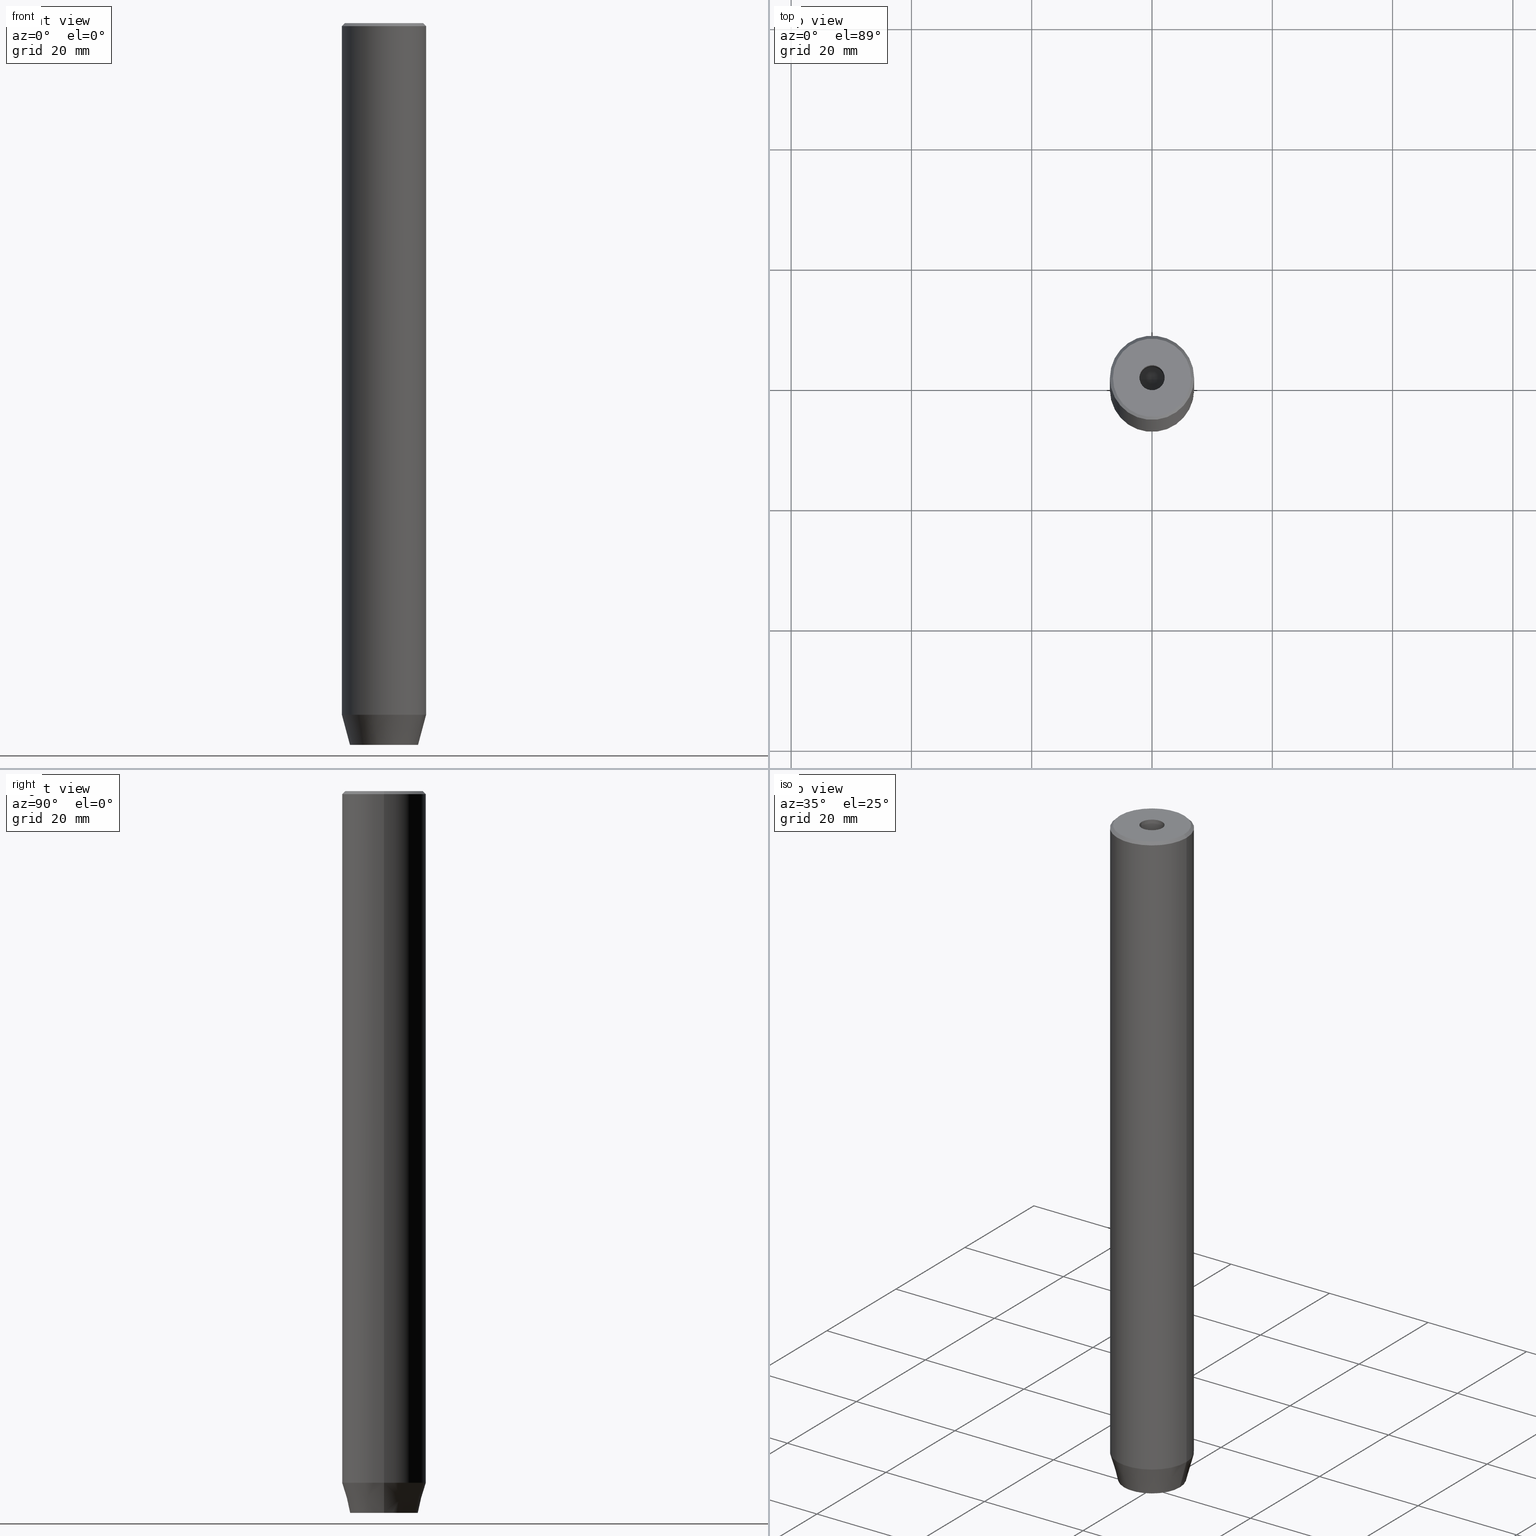
[diagram: canonical four-view strip — front | top / right | iso, engineering-drawing reading convention]
A machine part, canonical four-view strip (front | top / right | iso — engineering-drawing reading convention). The complete STEP part file that produces these views, byte-faithful:
ISO-10303-21;
HEADER;
FILE_DESCRIPTION (( 'STEP AP203' ),
    '1' );
FILE_NAME ('1593.STEP',
    '2024-01-02T21:52:36',
    ( '' ),
    ( '' ),
    'SwSTEP 2.0',
    'SolidWorks 2019',
    '' );
FILE_SCHEMA (( 'CONFIG_CONTROL_DESIGN' ));
ENDSEC;

DATA;
#1 = CYLINDRICAL_SURFACE ( 'NONE', #507, 7.000000000000000000 ) ;
#2 = EDGE_CURVE ( 'NONE', #585, #447, #322, .T. ) ;
#3 = EDGE_LOOP ( 'NONE', ( #538, #160, #533, #373 ) ) ;
#4 = CARTESIAN_POINT ( 'NONE',  ( -2.500000000000000444, 0.000000000000000000, -120.0000000000000000 ) ) ;
#5 = AXIS2_PLACEMENT_3D ( 'NONE', #271, #547, #178 ) ;
#6 = ORIENTED_EDGE ( 'NONE', *, *, #429, .F. ) ;
#7 = DESIGN_CONTEXT ( 'detailed design', #283, 'design' ) ;
#8 = EDGE_CURVE ( 'NONE', #502, #587, #417, .T. ) ;
#9 = DIRECTION ( 'NONE',  ( 0.8660254037844385966, -0.5000000000000001110, 0.000000000000000000 ) ) ;
#10 = ORIENTED_EDGE ( 'NONE', *, *, #568, .T. ) ;
#11 = EDGE_CURVE ( 'NONE', #398, #265, #177, .T. ) ;
#12 = LINE ( 'NONE', #410, #460 ) ;
#13 = VERTEX_POINT ( 'NONE', #144 ) ;
#14 = DIRECTION ( 'NONE',  ( 1.000000000000000000, 0.000000000000000000, 0.000000000000000000 ) ) ;
#15 = PLANE ( 'NONE',  #248 ) ;
#16 = PERSON_AND_ORGANIZATION ( #461, #202 ) ;
#17 = CARTESIAN_POINT ( 'NONE',  ( 5.660254037844382857, 0.000000000000000000, -120.0000000000000000 ) ) ;
#18 = CARTESIAN_POINT ( 'NONE',  ( 0.000000000000000000, 0.000000000000000000, 0.000000000000000000 ) ) ;
#19 = CARTESIAN_POINT ( 'NONE',  ( 2.500000000000000000, -1.443375672974064106, -120.0000000000000000 ) ) ;
#20 = DIRECTION ( 'NONE',  ( 0.000000000000000000, -0.000000000000000000, 1.000000000000000000 ) ) ;
#21 = CARTESIAN_POINT ( 'NONE',  ( 0.000000000000000000, 0.000000000000000000, -0.4999999999999908962 ) ) ;
#22 = VECTOR ( 'NONE', #112, 1000.000000000000000 ) ;
#23 = ADVANCED_FACE ( 'NONE', ( #542, #364 ), #551, .T. ) ;
#24 = LINE ( 'NONE', #200, #22 ) ;
#25 = ORIENTED_EDGE ( 'NONE', *, *, #228, .T. ) ;
#26 = ADVANCED_FACE ( 'NONE', ( #234 ), #545, .F. ) ;
#27 = CALENDAR_DATE ( 2024, 2, 1 ) ;
#28 = DIRECTION ( 'NONE',  ( -0.8660254037844385966, 0.5000000000000001110, 0.000000000000000000 ) ) ;
#29 = ORIENTED_EDGE ( 'NONE', *, *, #481, .F. ) ;
#30 = PERSON_AND_ORGANIZATION ( #461, #202 ) ;
#31 = DIRECTION ( 'NONE',  ( -0.000000000000000000, -0.000000000000000000, -1.000000000000000000 ) ) ;
#32 = ORIENTED_EDGE ( 'NONE', *, *, #491, .F. ) ;
#33 = VECTOR ( 'NONE', #31, 1000.000000000000000 ) ;
#34 = CC_DESIGN_APPROVAL ( #218, ( #53 ) ) ;
#35 = CARTESIAN_POINT ( 'NONE',  ( 6.500000000000005329, 7.960204194457803365E-16, 0.000000000000000000 ) ) ;
#36 = VERTEX_POINT ( 'NONE', #515 ) ;
#37 = CARTESIAN_POINT ( 'NONE',  ( 1.250000000000000222, 2.165063509461096825, -117.2000000000000028 ) ) ;
#38 = VERTEX_POINT ( 'NONE', #381 ) ;
#39 = ADVANCED_FACE ( 'NONE', ( #69 ), #50, .F. ) ;
#40 = DIRECTION ( 'NONE',  ( 0.5000000000000001110, 0.8660254037844385966, -0.000000000000000000 ) ) ;
#41 = EDGE_LOOP ( 'NONE', ( #492, #187 ) ) ;
#42 = DIRECTION ( 'NONE',  ( -0.000000000000000000, -0.000000000000000000, 1.000000000000000000 ) ) ;
#43 = CIRCLE ( 'NONE', #5, 2.099999999999996980 ) ;
#44 = ORIENTED_EDGE ( 'NONE', *, *, #180, .F. ) ;
#45 = DIRECTION ( 'NONE',  ( -0.2588190451025211836, 3.169619151431770488E-17, 0.9659258262890680902 ) ) ;
#46 = EDGE_LOOP ( 'NONE', ( #207, #529, #465, #504, #513, #370 ) ) ;
#47 = CARTESIAN_POINT ( 'NONE',  ( -2.099999999999996980, 2.571758278209438013E-16, -15.00000000000000000 ) ) ;
#48 = ORIENTED_EDGE ( 'NONE', *, *, #382, .F. ) ;
#49 = DIRECTION ( 'NONE',  ( 1.000000000000000000, 0.000000000000000000, 0.000000000000000000 ) ) ;
#50 = CONICAL_SURFACE ( 'NONE', #238, 2.099999999999996980, 1.029744258676652535 ) ;
#51 = VECTOR ( 'NONE', #522, 1000.000000000000000 ) ;
#52 = ORIENTED_EDGE ( 'NONE', *, *, #439, .T. ) ;
#53 = PRODUCT_DEFINITION_FORMATION_WITH_SPECIFIED_SOURCE ( 'LIBOVOLN�', '', #57, .NOT_KNOWN. ) ;
#54 = DIRECTION ( 'NONE',  ( 0.8660254037844385966, 0.4999999999999999445, 0.000000000000000000 ) ) ;
#55 = DIRECTION ( 'NONE',  ( 0.000000000000000000, 0.000000000000000000, -1.000000000000000000 ) ) ;
#56 = PERSON_AND_ORGANIZATION ( #461, #202 ) ;
#57 = PRODUCT ( '1593', '1593', '', ( #561 ) ) ;
#58 = EDGE_LOOP ( 'NONE', ( #411, #80, #494, #579 ) ) ;
#59 = DATE_AND_TIME ( #282, #339 ) ;
#60 = DIRECTION ( 'NONE',  ( 0.000000000000000000, 0.000000000000000000, -1.000000000000000000 ) ) ;
#61 = VECTOR ( 'NONE', #323, 1000.000000000000000 ) ;
#62 = DIRECTION ( 'NONE',  ( -0.4999999999999998890, -0.8660254037844387076, 0.000000000000000000 ) ) ;
#63 = ORIENTED_EDGE ( 'NONE', *, *, #399, .F. ) ;
#64 = CARTESIAN_POINT ( 'NONE',  ( 2.500000000000000000, 1.443375672974064328, -117.2000000000000028 ) ) ;
#65 = EDGE_CURVE ( 'NONE', #217, #587, #562, .T. ) ;
#66 = DIRECTION ( 'NONE',  ( -0.000000000000000000, -0.000000000000000000, -1.000000000000000000 ) ) ;
#67 = VECTOR ( 'NONE', #204, 1000.000000000000000 ) ;
#68 = CIRCLE ( 'NONE', #136, 6.500000000000005329 ) ;
#69 = FACE_OUTER_BOUND ( 'NONE', #74, .T. ) ;
#70 = APPROVAL_STATUS ( 'not_yet_approved' ) ;
#71 = DIRECTION ( 'NONE',  ( -0.000000000000000000, -0.000000000000000000, 1.000000000000000000 ) ) ;
#72 = ORIENTED_EDGE ( 'NONE', *, *, #180, .T. ) ;
#73 = FACE_OUTER_BOUND ( 'NONE', #58, .T. ) ;
#74 = EDGE_LOOP ( 'NONE', ( #86, #97, #184 ) ) ;
#75 = CLOSED_SHELL ( 'NONE', ( #444, #39, #169, #333, #510, #23, #546, #534, #405, #122, #549, #342, #235, #427, #26, #324, #402, #355, #291 ) ) ;
#76 = AXIS2_PLACEMENT_3D ( 'NONE', #188, #463, #501 ) ;
#77 = CC_DESIGN_APPROVAL ( #466, ( #345 ) ) ;
#78 = LINE ( 'NONE', #257, #266 ) ;
#79 = CC_DESIGN_PERSON_AND_ORGANIZATION_ASSIGNMENT ( #341, #293, ( #345 ) ) ;
#80 = ORIENTED_EDGE ( 'NONE', *, *, #130, .F. ) ;
#81 = CALENDAR_DATE ( 2024, 2, 1 ) ;
#82 = CARTESIAN_POINT ( 'NONE',  ( 0.000000000000000000, 0.000000000000000000, 0.000000000000000000 ) ) ;
#83 = EDGE_LOOP ( 'NONE', ( #52, #125, #168, #189 ) ) ;
#84 = EDGE_CURVE ( 'NONE', #398, #299, #432, .T. ) ;
#85 = LINE ( 'NONE', #35, #450 ) ;
#86 = ORIENTED_EDGE ( 'NONE', *, *, #2, .F. ) ;
#87 = AXIS2_PLACEMENT_3D ( 'NONE', #583, #484, #213 ) ;
#88 = DIRECTION ( 'NONE',  ( -0.000000000000000000, -0.000000000000000000, 1.000000000000000000 ) ) ;
#89 = VERTEX_POINT ( 'NONE', #17 ) ;
#90 = DIRECTION ( 'NONE',  ( -0.7071067811865500152, 0.000000000000000000, -0.7071067811865451302 ) ) ;
#91 = ORIENTED_EDGE ( 'NONE', *, *, #367, .F. ) ;
#92 = CARTESIAN_POINT ( 'NONE',  ( -6.500000000000005329, 0.000000000000000000, 0.000000000000000000 ) ) ;
#93 = EDGE_CURVE ( 'NONE', #274, #389, #305, .T. ) ;
#94 = ORIENTED_EDGE ( 'NONE', *, *, #130, .T. ) ;
#95 = DIRECTION ( 'NONE',  ( 0.000000000000000000, 1.000000000000000000, 0.000000000000000000 ) ) ;
#96 = AXIS2_PLACEMENT_3D ( 'NONE', #37, #40, #28 ) ;
#97 = ORIENTED_EDGE ( 'NONE', *, *, #286, .T. ) ;
#98 = AXIS2_PLACEMENT_3D ( 'NONE', #243, #280, #425 ) ;
#99 = APPLICATION_PROTOCOL_DEFINITION ( 'international standard', 'config_control_design', 1994, #283 ) ;
#100 = CARTESIAN_POINT ( 'NONE',  ( -2.500000000000000444, -1.443375672974064328, -117.2000000000000028 ) ) ;
#101 = APPROVAL_ROLE ( '' ) ;
#102 = LINE ( 'NONE', #195, #67 ) ;
#103 = ORIENTED_EDGE ( 'NONE', *, *, #8, .F. ) ;
#104 = EDGE_CURVE ( 'NONE', #350, #242, #113, .T. ) ;
#105 = DIRECTION ( 'NONE',  ( 0.000000000000000000, 0.000000000000000000, 1.000000000000000000 ) ) ;
#106 = DIRECTION ( 'NONE',  ( 0.000000000000000000, 0.000000000000000000, -1.000000000000000000 ) ) ;
#107 = AXIS2_PLACEMENT_3D ( 'NONE', #464, #55, #497 ) ;
#108 = CONICAL_SURFACE ( 'NONE', #574, 7.000000000000000000, 0.2617993877991499074 ) ;
#109 = DIRECTION ( 'NONE',  ( -0.000000000000000000, -0.000000000000000000, 1.000000000000000000 ) ) ;
#110 = EDGE_CURVE ( 'NONE', #265, #354, #24, .T. ) ;
#111 = DIRECTION ( 'NONE',  ( 0.000000000000000000, 0.000000000000000000, -1.000000000000000000 ) ) ;
#112 = DIRECTION ( 'NONE',  ( -0.000000000000000000, -0.000000000000000000, -1.000000000000000000 ) ) ;
#113 = LINE ( 'NONE', #246, #392 ) ;
#114 = AXIS2_PLACEMENT_3D ( 'NONE', #82, #254, #261 ) ;
#115 = VECTOR ( 'NONE', #71, 1000.000000000000000 ) ;
#116 = DATE_AND_TIME ( #27, #537 ) ;
#117 = LINE ( 'NONE', #120, #524 ) ;
#118 = ORIENTED_EDGE ( 'NONE', *, *, #320, .T. ) ;
#119 = APPROVAL_ROLE ( '' ) ;
#120 = CARTESIAN_POINT ( 'NONE',  ( -1.250000000000000444, 2.165063509461097269, -120.0000000000000000 ) ) ;
#121 = EDGE_LOOP ( 'NONE', ( #312, #32, #135, #272 ) ) ;
#122 = ADVANCED_FACE ( 'NONE', ( #292 ), #247, .T. ) ;
#123 = PERSON_AND_ORGANIZATION ( #461, #202 ) ;
#124 = CARTESIAN_POINT ( 'NONE',  ( 2.500000000000000000, -1.443375672974064106, -117.2000000000000028 ) ) ;
#125 = ORIENTED_EDGE ( 'NONE', *, *, #84, .F. ) ;
#126 = CIRCLE ( 'NONE', #201, 2.099999999999996980 ) ;
#127 = COORDINATED_UNIVERSAL_TIME_OFFSET ( 1, 0, .AHEAD. ) ;
#128 =( GEOMETRIC_REPRESENTATION_CONTEXT ( 3 ) GLOBAL_UNCERTAINTY_ASSIGNED_CONTEXT ( ( #270 ) ) GLOBAL_UNIT_ASSIGNED_CONTEXT ( ( #511, #521, #203 ) ) REPRESENTATION_CONTEXT ( 'NONE', 'WORKASPACE' ) );
#129 = DIRECTION ( 'NONE',  ( -0.8660254037844387076, -0.5000000000000001110, 0.000000000000000000 ) ) ;
#130 = EDGE_CURVE ( 'NONE', #175, #404, #102, .T. ) ;
#131 = ORIENTED_EDGE ( 'NONE', *, *, #568, .F. ) ;
#132 = CARTESIAN_POINT ( 'NONE',  ( -2.099999999999996980, 2.571758278209438013E-16, -15.00000000000000000 ) ) ;
#133 = ORIENTED_EDGE ( 'NONE', *, *, #448, .F. ) ;
#134 = CARTESIAN_POINT ( 'NONE',  ( -7.000000000000000000, 8.572527594031473190E-16, -114.9999999999999858 ) ) ;
#135 = ORIENTED_EDGE ( 'NONE', *, *, #303, .T. ) ;
#136 = AXIS2_PLACEMENT_3D ( 'NONE', #378, #148, #335 ) ;
#137 = CARTESIAN_POINT ( 'NONE',  ( 2.099999999999996980, 0.000000000000000000, -15.00000000000000000 ) ) ;
#138 = VECTOR ( 'NONE', #109, 1000.000000000000000 ) ;
#139 = CARTESIAN_POINT ( 'NONE',  ( 2.500000000000000000, 0.000000000000000000, -117.2000000000000028 ) ) ;
#140 = LINE ( 'NONE', #145, #327 ) ;
#141 = ORIENTED_EDGE ( 'NONE', *, *, #251, .T. ) ;
#142 = EDGE_CURVE ( 'NONE', #36, #89, #554, .T. ) ;
#143 = DIRECTION ( 'NONE',  ( 1.000000000000000000, 0.000000000000000000, 0.000000000000000000 ) ) ;
#144 = CARTESIAN_POINT ( 'NONE',  ( 2.099999999999998757, 0.000000000000000000, -1.990051048614449116E-16 ) ) ;
#145 = CARTESIAN_POINT ( 'NONE',  ( 1.249999999999999778, -2.165063509461096380, -117.2000000000000028 ) ) ;
#146 = EDGE_LOOP ( 'NONE', ( #165, #162, #48, #94 ) ) ;
#147 = FACE_BOUND ( 'NONE', #360, .T. ) ;
#148 = DIRECTION ( 'NONE',  ( -0.000000000000000000, -0.000000000000000000, 1.000000000000000000 ) ) ;
#149 = CARTESIAN_POINT ( 'NONE',  ( -2.500000000000000444, -1.443375672974064328, -120.0000000000000000 ) ) ;
#150 = CARTESIAN_POINT ( 'NONE',  ( -7.000000000000000000, 8.572527594031473190E-16, -0.4999999999999908962 ) ) ;
#151 = EDGE_CURVE ( 'NONE', #389, #274, #421, .T. ) ;
#152 = DIRECTION ( 'NONE',  ( 1.000000000000000000, 0.000000000000000000, 0.000000000000000000 ) ) ;
#153 = VECTOR ( 'NONE', #90, 1000.000000000000114 ) ;
#154 = APPROVAL_PERSON_ORGANIZATION ( #16, #218, #119 ) ;
#155 = CC_DESIGN_PERSON_AND_ORGANIZATION_ASSIGNMENT ( #30, #525, ( #368 ) ) ;
#156 = APPROVAL_DATE_TIME ( #59, #466 ) ;
#157 = DIRECTION ( 'NONE',  ( 0.8660254037844387076, -0.4999999999999998890, 0.000000000000000000 ) ) ;
#158 = CALENDAR_DATE ( 2024, 2, 1 ) ;
#159 = CARTESIAN_POINT ( 'NONE',  ( 0.000000000000000000, -2.886751345948128211, -120.0000000000000000 ) ) ;
#160 = ORIENTED_EDGE ( 'NONE', *, *, #110, .F. ) ;
#161 = CARTESIAN_POINT ( 'NONE',  ( 2.500000000000000000, 1.443375672974064328, -120.0000000000000000 ) ) ;
#162 = ORIENTED_EDGE ( 'NONE', *, *, #104, .F. ) ;
#163 = CALENDAR_DATE ( 2024, 2, 1 ) ;
#164 = LINE ( 'NONE', #298, #221 ) ;
#165 = ORIENTED_EDGE ( 'NONE', *, *, #505, .T. ) ;
#166 = PERSON_AND_ORGANIZATION ( #461, #202 ) ;
#167 = LINE ( 'NONE', #353, #115 ) ;
#168 = ORIENTED_EDGE ( 'NONE', *, *, #412, .F. ) ;
#169 = ADVANCED_FACE ( 'NONE', ( #289 ), #230, .T. ) ;
#170 = LINE ( 'NONE', #403, #555 ) ;
#171 = ORIENTED_EDGE ( 'NONE', *, *, #275, .F. ) ;
#172 = AXIS2_PLACEMENT_3D ( 'NONE', #565, #20, #518 ) ;
#173 = SHAPE_DEFINITION_REPRESENTATION ( #415, #197 ) ;
#174 = DIRECTION ( 'NONE',  ( -0.8660254037844387076, 0.4999999999999998890, 0.000000000000000000 ) ) ;
#175 = VERTEX_POINT ( 'NONE', #64 ) ;
#176 = LINE ( 'NONE', #134, #276 ) ;
#177 = LINE ( 'NONE', #362, #469 ) ;
#178 = DIRECTION ( 'NONE',  ( 1.000000000000000000, 0.000000000000000000, 0.000000000000000000 ) ) ;
#179 = EDGE_LOOP ( 'NONE', ( #357, #103, #253, #451 ) ) ;
#180 = EDGE_CURVE ( 'NONE', #516, #38, #517, .T. ) ;
#181 = CONICAL_SURFACE ( 'NONE', #384, 7.000000000000000000, 0.2617993877991499074 ) ;
#182 = CARTESIAN_POINT ( 'NONE',  ( 0.000000000000000000, 0.000000000000000000, -1.990051048614449116E-16 ) ) ;
#183 = LOCAL_TIME ( 22, 52, 36.00000000000000000, #489 ) ;
#184 = ORIENTED_EDGE ( 'NONE', *, *, #475, .T. ) ;
#185 = CC_DESIGN_DATE_AND_TIME_ASSIGNMENT ( #239, #422, ( #345 ) ) ;
#186 = LINE ( 'NONE', #369, #153 ) ;
#187 = ORIENTED_EDGE ( 'NONE', *, *, #399, .T. ) ;
#188 = CARTESIAN_POINT ( 'NONE',  ( 0.000000000000000000, 0.000000000000000000, -114.9999999999999858 ) ) ;
#189 = ORIENTED_EDGE ( 'NONE', *, *, #8, .T. ) ;
#190 = CARTESIAN_POINT ( 'NONE',  ( 6.500000000000005329, 8.266365894244638278E-16, 0.000000000000000000 ) ) ;
#191 = CC_DESIGN_PERSON_AND_ORGANIZATION_ASSIGNMENT ( #166, #445, ( #53 ) ) ;
#192 = AXIS2_PLACEMENT_3D ( 'NONE', #458, #268, #54 ) ;
#193 = CARTESIAN_POINT ( 'NONE',  ( -1.084202172485504434E-16, 2.886751345948129543, -117.2000000000000028 ) ) ;
#194 = DIRECTION ( 'NONE',  ( -0.000000000000000000, -0.000000000000000000, 1.000000000000000000 ) ) ;
#195 = CARTESIAN_POINT ( 'NONE',  ( 2.500000000000000000, 1.443375672974064328, -117.2000000000000028 ) ) ;
#196 = ORIENTED_EDGE ( 'NONE', *, *, #395, .F. ) ;
#197 = ADVANCED_BREP_SHAPE_REPRESENTATION ( '1593', ( #263, #267 ), #128 ) ;
#198 = DIRECTION ( 'NONE',  ( 1.000000000000000000, 0.000000000000000000, 0.000000000000000000 ) ) ;
#199 = DIRECTION ( 'NONE',  ( 1.000000000000000000, 0.000000000000000000, 0.000000000000000000 ) ) ;
#200 = CARTESIAN_POINT ( 'NONE',  ( -1.084202172485504434E-16, 2.886751345948129543, -117.2000000000000028 ) ) ;
#201 = AXIS2_PLACEMENT_3D ( 'NONE', #541, #88, #273 ) ;
#202 = ORGANIZATION ( 'NEUR�EN�', 'NEUR�EN�', '' ) ;
#203 =( NAMED_UNIT ( * ) SI_UNIT ( $, .STERADIAN. ) SOLID_ANGLE_UNIT ( ) );
#204 = DIRECTION ( 'NONE',  ( -0.000000000000000000, -0.000000000000000000, -1.000000000000000000 ) ) ;
#205 = ORIENTED_EDGE ( 'NONE', *, *, #320, .F. ) ;
#206 = FACE_OUTER_BOUND ( 'NONE', #121, .T. ) ;
#207 = ORIENTED_EDGE ( 'NONE', *, *, #11, .T. ) ;
#208 = DATE_TIME_ROLE ( 'classification_date' ) ;
#209 = CARTESIAN_POINT ( 'NONE',  ( 7.000000000000000000, 0.000000000000000000, -0.4999999999999908962 ) ) ;
#210 = AXIS2_PLACEMENT_3D ( 'NONE', #474, #428, #152 ) ;
#211 = ORIENTED_EDGE ( 'NONE', *, *, #336, .F. ) ;
#212 = AXIS2_PLACEMENT_3D ( 'NONE', #182, #225, #418 ) ;
#213 = DIRECTION ( 'NONE',  ( 0.000000000000000000, 0.000000000000000000, 1.000000000000000000 ) ) ;
#214 = ORIENTED_EDGE ( 'NONE', *, *, #151, .F. ) ;
#215 = DATE_AND_TIME ( #81, #414 ) ;
#216 = LINE ( 'NONE', #580, #440 ) ;
#217 = VERTEX_POINT ( 'NONE', #159 ) ;
#218 = APPROVAL ( #70, 'NEUR�EN�' ) ;
#219 = CYLINDRICAL_SURFACE ( 'NONE', #114, 2.099999999999997868 ) ;
#220 = EDGE_LOOP ( 'NONE', ( #205, #171, #409, #214 ) ) ;
#221 = VECTOR ( 'NONE', #174, 1000.000000000000114 ) ;
#222 = LOCAL_TIME ( 22, 52, 36.00000000000000000, #387 ) ;
#223 = DIRECTION ( 'NONE',  ( 1.000000000000000000, 0.000000000000000000, 0.000000000000000000 ) ) ;
#224 = ORIENTED_EDGE ( 'NONE', *, *, #429, .T. ) ;
#225 = DIRECTION ( 'NONE',  ( -0.000000000000000000, -0.000000000000000000, 1.000000000000000000 ) ) ;
#226 = CARTESIAN_POINT ( 'NONE',  ( 2.099999999999996980, 0.000000000000000000, -15.00000000000000000 ) ) ;
#227 = LINE ( 'NONE', #4, #61 ) ;
#228 = EDGE_CURVE ( 'NONE', #457, #527, #340, .T. ) ;
#229 = ORIENTED_EDGE ( 'NONE', *, *, #505, .F. ) ;
#230 = CONICAL_SURFACE ( 'NONE', #544, 6.500000000000005329, 0.7853981633974517207 ) ;
#231 = DIRECTION ( 'NONE',  ( 0.000000000000000000, -1.000000000000000000, 0.000000000000000000 ) ) ;
#232 = ORIENTED_EDGE ( 'NONE', *, *, #448, .T. ) ;
#233 = CARTESIAN_POINT ( 'NONE',  ( 0.000000000000000000, 0.000000000000000000, 0.000000000000000000 ) ) ;
#234 = FACE_OUTER_BOUND ( 'NONE', #146, .T. ) ;
#235 = ADVANCED_FACE ( 'NONE', ( #344 ), #15, .F. ) ;
#236 = DIRECTION ( 'NONE',  ( -0.5000000000000001110, 0.8660254037844385966, 0.000000000000000000 ) ) ;
#237 = EDGE_LOOP ( 'NONE', ( #224, #10, #483, #459 ) ) ;
#238 = AXIS2_PLACEMENT_3D ( 'NONE', #250, #295, #478 ) ;
#239 = DATE_AND_TIME ( #158, #222 ) ;
#240 = DIRECTION ( 'NONE',  ( -0.000000000000000000, -0.000000000000000000, -1.000000000000000000 ) ) ;
#241 = DIRECTION ( 'NONE',  ( -1.000000000000000000, 0.000000000000000000, 0.000000000000000000 ) ) ;
#242 = VERTEX_POINT ( 'NONE', #19 ) ;
#243 = CARTESIAN_POINT ( 'NONE',  ( 0.000000000000000000, 0.000000000000000000, -120.0000000000000000 ) ) ;
#244 = CARTESIAN_POINT ( 'NONE',  ( -1.249999999999999556, -2.165063509461096825, -117.2000000000000028 ) ) ;
#245 = PRODUCT_RELATED_PRODUCT_CATEGORY ( 'detail', '', ( #57 ) ) ;
#246 = CARTESIAN_POINT ( 'NONE',  ( 2.500000000000000000, -1.443375672974064106, -117.2000000000000028 ) ) ;
#247 = CONICAL_SURFACE ( 'NONE', #326, 6.500000000000005329, 0.7853981633974517207 ) ;
#248 = AXIS2_PLACEMENT_3D ( 'NONE', #244, #62, #157 ) ;
#249 = DATE_AND_TIME ( #163, #183 ) ;
#250 = CARTESIAN_POINT ( 'NONE',  ( 0.000000000000000000, 0.000000000000000000, -15.00000000000000000 ) ) ;
#251 = EDGE_CURVE ( 'NONE', #89, #38, #343, .T. ) ;
#252 = DIRECTION ( 'NONE',  ( -0.000000000000000000, -0.000000000000000000, 1.000000000000000000 ) ) ;
#253 = ORIENTED_EDGE ( 'NONE', *, *, #351, .F. ) ;
#254 = DIRECTION ( 'NONE',  ( -0.000000000000000000, -0.000000000000000000, 1.000000000000000000 ) ) ;
#255 = ORIENTED_EDGE ( 'NONE', *, *, #2, .T. ) ;
#256 = AXIS2_PLACEMENT_3D ( 'NONE', #449, #313, #143 ) ;
#257 = CARTESIAN_POINT ( 'NONE',  ( 1.250000000000000222, 2.165063509461096825, -117.2000000000000028 ) ) ;
#258 = EDGE_CURVE ( 'NONE', #38, #389, #523, .T. ) ;
#259 = EDGE_LOOP ( 'NONE', ( #520, #255, #407 ) ) ;
#260 = APPROVAL_DATE_TIME ( #215, #316 ) ;
#261 = DIRECTION ( 'NONE',  ( 1.000000000000000000, 0.000000000000000000, 0.000000000000000000 ) ) ;
#262 = ORIENTED_EDGE ( 'NONE', *, *, #439, .F. ) ;
#263 = MANIFOLD_SOLID_BREP ( 'Vrt�k z�vitn�ku pro M5 z�vit1', #75 ) ;
#264 = CARTESIAN_POINT ( 'NONE',  ( 0.000000000000000000, 0.000000000000000000, 0.000000000000000000 ) ) ;
#265 = VERTEX_POINT ( 'NONE', #193 ) ;
#266 = VECTOR ( 'NONE', #442, 1000.000000000000000 ) ;
#267 = AXIS2_PLACEMENT_3D ( 'NONE', #18, #105, #198 ) ;
#268 = DIRECTION ( 'NONE',  ( 0.5000000000000000000, -0.8660254037844387076, 0.000000000000000000 ) ) ;
#269 = DIRECTION ( 'NONE',  ( 0.8660254037844385966, 0.5000000000000001110, 0.000000000000000000 ) ) ;
#270 = UNCERTAINTY_MEASURE_WITH_UNIT (LENGTH_MEASURE( 1.000000000000000082E-05 ), #511, 'distance_accuracy_value', 'NONE');
#271 = CARTESIAN_POINT ( 'NONE',  ( 0.000000000000000000, 0.000000000000000000, -15.00000000000000000 ) ) ;
#272 = ORIENTED_EDGE ( 'NONE', *, *, #456, .T. ) ;
#273 = DIRECTION ( 'NONE',  ( 1.000000000000000000, 0.000000000000000000, 0.000000000000000000 ) ) ;
#274 = VERTEX_POINT ( 'NONE', #150 ) ;
#275 = EDGE_CURVE ( 'NONE', #435, #581, #68, .T. ) ;
#276 = VECTOR ( 'NONE', #45, 1000.000000000000114 ) ;
#277 = PLANE ( 'NONE',  #192 ) ;
#278 = APPROVAL_PERSON_ORGANIZATION ( #575, #316, #571 ) ;
#279 = EDGE_LOOP ( 'NONE', ( #420, #310, #141, #44 ) ) ;
#280 = DIRECTION ( 'NONE',  ( -0.000000000000000000, -0.000000000000000000, 1.000000000000000000 ) ) ;
#281 = ORIENTED_EDGE ( 'NONE', *, *, #456, .F. ) ;
#282 = CALENDAR_DATE ( 2024, 2, 1 ) ;
#283 = APPLICATION_CONTEXT ( 'configuration controlled 3d designs of mechanical parts and assemblies' ) ;
#284 = DIRECTION ( 'NONE',  ( -0.8660254037844387076, 0.4999999999999998890, 0.000000000000000000 ) ) ;
#285 = ORIENTED_EDGE ( 'NONE', *, *, #258, .T. ) ;
#286 = EDGE_CURVE ( 'NONE', #585, #457, #490, .T. ) ;
#287 = FACE_OUTER_BOUND ( 'NONE', #41, .T. ) ;
#288 = AXIS2_PLACEMENT_3D ( 'NONE', #479, #252, #436 ) ;
#289 = FACE_OUTER_BOUND ( 'NONE', #330, .T. ) ;
#290 = CARTESIAN_POINT ( 'NONE',  ( -3.982994051648894933E-15, 0.000000000000000000, -16.26180729995787644 ) ) ;
#291 = ADVANCED_FACE ( 'NONE', ( #206 ), #219, .F. ) ;
#292 = FACE_OUTER_BOUND ( 'NONE', #220, .T. ) ;
#293 = PERSON_AND_ORGANIZATION_ROLE ( 'creator' ) ;
#294 = DIRECTION ( 'NONE',  ( 1.000000000000000000, 0.000000000000000000, 0.000000000000000000 ) ) ;
#295 = DIRECTION ( 'NONE',  ( -0.000000000000000000, -0.000000000000000000, 1.000000000000000000 ) ) ;
#296 = AXIS2_PLACEMENT_3D ( 'NONE', #233, #406, #49 ) ;
#297 = ORIENTED_EDGE ( 'NONE', *, *, #142, .F. ) ;
#298 = CARTESIAN_POINT ( 'NONE',  ( -1.249999999999999556, -2.165063509461096825, -117.2000000000000028 ) ) ;
#299 = VERTEX_POINT ( 'NONE', #346 ) ;
#300 = DIRECTION ( 'NONE',  ( 0.8660254037844385966, 0.5000000000000001110, 0.000000000000000000 ) ) ;
#301 = ORIENTED_EDGE ( 'NONE', *, *, #251, .F. ) ;
#302 = APPLICATION_CONTEXT ( 'configuration controlled 3d designs of mechanical parts and assemblies' ) ;
#303 = EDGE_CURVE ( 'NONE', #447, #13, #167, .T. ) ;
#304 = CARTESIAN_POINT ( 'NONE',  ( 0.000000000000000000, -2.886751345948128211, -117.2000000000000028 ) ) ;
#305 = CIRCLE ( 'NONE', #506, 7.000000000000000000 ) ;
#306 = ORIENTED_EDGE ( 'NONE', *, *, #471, .F. ) ;
#307 = CONICAL_SURFACE ( 'NONE', #288, 2.099999999999996980, 1.029744258676652535 ) ;
#308 = PERSON_AND_ORGANIZATION_ROLE ( 'creator' ) ;
#309 = FACE_OUTER_BOUND ( 'NONE', #46, .T. ) ;
#310 = ORIENTED_EDGE ( 'NONE', *, *, #142, .T. ) ;
#311 = CARTESIAN_POINT ( 'NONE',  ( 0.000000000000000000, 0.000000000000000000, -117.2000000000000028 ) ) ;
#312 = ORIENTED_EDGE ( 'NONE', *, *, #228, .F. ) ;
#313 = DIRECTION ( 'NONE',  ( -0.000000000000000000, -0.000000000000000000, 1.000000000000000000 ) ) ;
#314 = EDGE_LOOP ( 'NONE', ( #433, #25, #232, #509 ) ) ;
#315 = VECTOR ( 'NONE', #284, 1000.000000000000114 ) ;
#316 = APPROVAL ( #531, 'NEUR�EN�' ) ;
#317 = CIRCLE ( 'NONE', #76, 7.000000000000000000 ) ;
#318 = CARTESIAN_POINT ( 'NONE',  ( 0.000000000000000000, 0.000000000000000000, 0.000000000000000000 ) ) ;
#319 = DIRECTION ( 'NONE',  ( 1.000000000000000000, 0.000000000000000000, -0.000000000000000000 ) ) ;
#320 = EDGE_CURVE ( 'NONE', #581, #389, #85, .T. ) ;
#321 = LINE ( 'NONE', #361, #338 ) ;
#322 = LINE ( 'NONE', #226, #430 ) ;
#323 = DIRECTION ( 'NONE',  ( 0.000000000000000000, 1.000000000000000000, 0.000000000000000000 ) ) ;
#324 = ADVANCED_FACE ( 'NONE', ( #73 ), #438, .F. ) ;
#325 = EDGE_LOOP ( 'NONE', ( #211, #262, #540, #196, #229, #29 ) ) ;
#326 = AXIS2_PLACEMENT_3D ( 'NONE', #332, #106, #241 ) ;
#327 = VECTOR ( 'NONE', #550, 999.9999999999998863 ) ;
#328 = CARTESIAN_POINT ( 'NONE',  ( -2.500000000000000444, -1.443375672974064328, -117.2000000000000028 ) ) ;
#329 = CIRCLE ( 'NONE', #98, 5.660254037844382857 ) ;
#330 = EDGE_LOOP ( 'NONE', ( #63, #118, #419, #306 ) ) ;
#331 = PERSON_AND_ORGANIZATION_ROLE ( 'design_owner' ) ;
#332 = CARTESIAN_POINT ( 'NONE',  ( 0.000000000000000000, 0.000000000000000000, 0.000000000000000000 ) ) ;
#333 = ADVANCED_FACE ( 'NONE', ( #526 ), #181, .T. ) ;
#334 = APPROVAL_STATUS ( 'not_yet_approved' ) ;
#335 = DIRECTION ( 'NONE',  ( 1.000000000000000000, 0.000000000000000000, 0.000000000000000000 ) ) ;
#336 = EDGE_CURVE ( 'NONE', #299, #354, #117, .T. ) ;
#337 = PLANE ( 'NONE',  #172 ) ;
#338 = VECTOR ( 'NONE', #231, 1000.000000000000000 ) ;
#339 = LOCAL_TIME ( 22, 52, 36.00000000000000000, #514 ) ;
#340 = LINE ( 'NONE', #519, #366 ) ;
#341 = PERSON_AND_ORGANIZATION ( #461, #202 ) ;
#342 = ADVANCED_FACE ( 'NONE', ( #576 ), #532, .F. ) ;
#343 = LINE ( 'NONE', #386, #413 ) ;
#344 = FACE_OUTER_BOUND ( 'NONE', #179, .T. ) ;
#345 = PRODUCT_DEFINITION ( 'NEZN�M�', '', #53, #7 ) ;
#346 = CARTESIAN_POINT ( 'NONE',  ( -2.500000000000000444, 1.443375672974064772, -120.0000000000000000 ) ) ;
#347 = AXIS2_PLACEMENT_3D ( 'NONE', #434, #359, #393 ) ;
#348 = EDGE_LOOP ( 'NONE', ( #131, #72, #285, #401 ) ) ;
#349 = CARTESIAN_POINT ( 'NONE',  ( 0.000000000000000000, 0.000000000000000000, -114.9999999999999858 ) ) ;
#350 = VERTEX_POINT ( 'NONE', #124 ) ;
#351 = EDGE_CURVE ( 'NONE', #570, #502, #164, .T. ) ;
#352 = SECURITY_CLASSIFICATION_LEVEL ( 'unclassified' ) ;
#353 = CARTESIAN_POINT ( 'NONE',  ( 2.099999999999997868, 0.000000000000000000, 0.000000000000000000 ) ) ;
#354 = VERTEX_POINT ( 'NONE', #356 ) ;
#355 = ADVANCED_FACE ( 'NONE', ( #482 ), #307, .F. ) ;
#356 = CARTESIAN_POINT ( 'NONE',  ( 0.000000000000000000, 2.886751345948129099, -120.0000000000000000 ) ) ;
#357 = ORIENTED_EDGE ( 'NONE', *, *, #65, .T. ) ;
#358 = AXIS2_PLACEMENT_3D ( 'NONE', #264, #42, #223 ) ;
#359 = DIRECTION ( 'NONE',  ( -0.000000000000000000, -0.000000000000000000, 1.000000000000000000 ) ) ;
#360 = EDGE_LOOP ( 'NONE', ( #281, #133 ) ) ;
#361 = CARTESIAN_POINT ( 'NONE',  ( 2.500000000000000000, 0.000000000000000000, -120.0000000000000000 ) ) ;
#362 = CARTESIAN_POINT ( 'NONE',  ( -1.250000000000000444, 2.165063509461097269, -117.2000000000000028 ) ) ;
#363 = FACE_OUTER_BOUND ( 'NONE', #314, .T. ) ;
#364 = FACE_OUTER_BOUND ( 'NONE', #437, .T. ) ;
#365 = VECTOR ( 'NONE', #553, 1000.000000000000000 ) ;
#366 = VECTOR ( 'NONE', #426, 1000.000000000000000 ) ;
#367 = EDGE_CURVE ( 'NONE', #570, #217, #400, .T. ) ;
#368 = SECURITY_CLASSIFICATION ( '', '', #352 ) ;
#369 = CARTESIAN_POINT ( 'NONE',  ( -6.500000000000005329, 0.000000000000000000, 0.000000000000000000 ) ) ;
#370 = ORIENTED_EDGE ( 'NONE', *, *, #412, .T. ) ;
#371 = EDGE_CURVE ( 'NONE', #265, #175, #78, .T. ) ;
#372 = DIRECTION ( 'NONE',  ( 1.000000000000000000, 0.000000000000000000, 0.000000000000000000 ) ) ;
#373 = ORIENTED_EDGE ( 'NONE', *, *, #84, .T. ) ;
#374 = CYLINDRICAL_SURFACE ( 'NONE', #296, 2.099999999999997868 ) ;
#375 = DIRECTION ( 'NONE',  ( 0.8571673007021113344, 0.000000000000000000, 0.5150380749100558209 ) ) ;
#376 = VECTOR ( 'NONE', #578, 1000.000000000000000 ) ;
#377 = LINE ( 'NONE', #567, #138 ) ;
#378 = CARTESIAN_POINT ( 'NONE',  ( 0.000000000000000000, 0.000000000000000000, 0.000000000000000000 ) ) ;
#379 = FACE_OUTER_BOUND ( 'NONE', #3, .T. ) ;
#380 = DIRECTION ( 'NONE',  ( 0.000000000000000000, 0.000000000000000000, -1.000000000000000000 ) ) ;
#381 = CARTESIAN_POINT ( 'NONE',  ( 7.000000000000000000, 0.000000000000000000, -114.9999999999999858 ) ) ;
#382 = EDGE_CURVE ( 'NONE', #175, #350, #216, .T. ) ;
#383 = PERSON_AND_ORGANIZATION ( #461, #202 ) ;
#384 = AXIS2_PLACEMENT_3D ( 'NONE', #349, #397, #493 ) ;
#385 = CC_DESIGN_APPROVAL ( #316, ( #368 ) ) ;
#386 = CARTESIAN_POINT ( 'NONE',  ( 7.000000000000000000, 0.000000000000000000, -114.9999999999999858 ) ) ;
#387 = COORDINATED_UNIVERSAL_TIME_OFFSET ( 1, 0, .AHEAD. ) ;
#388 = CARTESIAN_POINT ( 'NONE',  ( 0.000000000000000000, 0.000000000000000000, -0.4999999999999908962 ) ) ;
#389 = VERTEX_POINT ( 'NONE', #209 ) ;
#390 = CARTESIAN_POINT ( 'NONE',  ( -2.500000000000000444, 1.443375672974064772, -117.2000000000000028 ) ) ;
#391 = APPROVAL_DATE_TIME ( #249, #218 ) ;
#392 = VECTOR ( 'NONE', #240, 1000.000000000000000 ) ;
#393 = DIRECTION ( 'NONE',  ( 1.000000000000000000, 0.000000000000000000, 0.000000000000000000 ) ) ;
#394 = CIRCLE ( 'NONE', #212, 2.099999999999998757 ) ;
#395 = EDGE_CURVE ( 'NONE', #242, #217, #170, .T. ) ;
#396 = ORIENTED_EDGE ( 'NONE', *, *, #395, .T. ) ;
#397 = DIRECTION ( 'NONE',  ( -0.000000000000000000, -0.000000000000000000, 1.000000000000000000 ) ) ;
#398 = VERTEX_POINT ( 'NONE', #390 ) ;
#399 = EDGE_CURVE ( 'NONE', #581, #435, #470, .T. ) ;
#400 = LINE ( 'NONE', #304, #33 ) ;
#401 = ORIENTED_EDGE ( 'NONE', *, *, #151, .T. ) ;
#402 = ADVANCED_FACE ( 'NONE', ( #309 ), #446, .T. ) ;
#403 = CARTESIAN_POINT ( 'NONE',  ( 1.249999999999999778, -2.165063509461096380, -120.0000000000000000 ) ) ;
#404 = VERTEX_POINT ( 'NONE', #161 ) ;
#405 = ADVANCED_FACE ( 'NONE', ( #495 ), #108, .T. ) ;
#406 = DIRECTION ( 'NONE',  ( -0.000000000000000000, -0.000000000000000000, 1.000000000000000000 ) ) ;
#407 = ORIENTED_EDGE ( 'NONE', *, *, #491, .T. ) ;
#408 = FACE_OUTER_BOUND ( 'NONE', #348, .T. ) ;
#409 = ORIENTED_EDGE ( 'NONE', *, *, #471, .T. ) ;
#410 = CARTESIAN_POINT ( 'NONE',  ( -2.500000000000000444, 0.000000000000000000, -117.2000000000000028 ) ) ;
#411 = ORIENTED_EDGE ( 'NONE', *, *, #481, .T. ) ;
#412 = EDGE_CURVE ( 'NONE', #502, #398, #12, .T. ) ;
#413 = VECTOR ( 'NONE', #566, 1000.000000000000114 ) ;
#414 = LOCAL_TIME ( 22, 52, 36.00000000000000000, #127 ) ;
#415 = PRODUCT_DEFINITION_SHAPE ( 'NONE', 'NONE',  #345 ) ;
#416 = CYLINDRICAL_SURFACE ( 'NONE', #358, 7.000000000000000000 ) ;
#417 = LINE ( 'NONE', #100, #365 ) ;
#418 = DIRECTION ( 'NONE',  ( 1.000000000000000000, 0.000000000000000000, 0.000000000000000000 ) ) ;
#419 = ORIENTED_EDGE ( 'NONE', *, *, #93, .F. ) ;
#420 = ORIENTED_EDGE ( 'NONE', *, *, #530, .F. ) ;
#421 = CIRCLE ( 'NONE', #584, 7.000000000000000000 ) ;
#422 = DATE_TIME_ROLE ( 'creation_date' ) ;
#423 = CC_DESIGN_PERSON_AND_ORGANIZATION_ASSIGNMENT ( #383, #331, ( #57 ) ) ;
#424 = CARTESIAN_POINT ( 'NONE',  ( 7.000000000000000000, 0.000000000000000000, 0.000000000000000000 ) ) ;
#425 = DIRECTION ( 'NONE',  ( 1.000000000000000000, 0.000000000000000000, 0.000000000000000000 ) ) ;
#426 = DIRECTION ( 'NONE',  ( -0.000000000000000000, -0.000000000000000000, 1.000000000000000000 ) ) ;
#427 = ADVANCED_FACE ( 'NONE', ( #498 ), #277, .F. ) ;
#428 = DIRECTION ( 'NONE',  ( -0.000000000000000000, -0.000000000000000000, 1.000000000000000000 ) ) ;
#429 = EDGE_CURVE ( 'NONE', #38, #516, #317, .T. ) ;
#430 = VECTOR ( 'NONE', #375, 1000.000000000000000 ) ;
#431 = PLANE ( 'NONE',  #477 ) ;
#432 = LINE ( 'NONE', #468, #573 ) ;
#433 = ORIENTED_EDGE ( 'NONE', *, *, #475, .F. ) ;
#434 = CARTESIAN_POINT ( 'NONE',  ( 0.000000000000000000, 0.000000000000000000, 0.000000000000000000 ) ) ;
#435 = VERTEX_POINT ( 'NONE', #92 ) ;
#436 = DIRECTION ( 'NONE',  ( 1.000000000000000000, 0.000000000000000000, 0.000000000000000000 ) ) ;
#437 = EDGE_LOOP ( 'NONE', ( #548, #297 ) ) ;
#438 = PLANE ( 'NONE',  #96 ) ;
#439 = EDGE_CURVE ( 'NONE', #587, #299, #227, .T. ) ;
#440 = VECTOR ( 'NONE', #535, 1000.000000000000000 ) ;
#441 = ORIENTED_EDGE ( 'NONE', *, *, #104, .T. ) ;
#442 = DIRECTION ( 'NONE',  ( 0.8660254037844385966, -0.5000000000000001110, 0.000000000000000000 ) ) ;
#443 = ORIENTED_EDGE ( 'NONE', *, *, #530, .T. ) ;
#444 = ADVANCED_FACE ( 'NONE', ( #363 ), #374, .F. ) ;
#445 = PERSON_AND_ORGANIZATION_ROLE ( 'design_supplier' ) ;
#446 = PLANE ( 'NONE',  #452 ) ;
#447 = VERTEX_POINT ( 'NONE', #137 ) ;
#448 = EDGE_CURVE ( 'NONE', #527, #13, #394, .T. ) ;
#449 = CARTESIAN_POINT ( 'NONE',  ( 0.000000000000000000, 0.000000000000000000, -1.990051048614449116E-16 ) ) ;
#450 = VECTOR ( 'NONE', #528, 1000.000000000000114 ) ;
#451 = ORIENTED_EDGE ( 'NONE', *, *, #367, .T. ) ;
#452 = AXIS2_PLACEMENT_3D ( 'NONE', #311, #539, #572 ) ;
#453 = LINE ( 'NONE', #552, #485 ) ;
#454 = ORIENTED_EDGE ( 'NONE', *, *, #486, .F. ) ;
#455 = DIRECTION ( 'NONE',  ( -0.000000000000000000, -0.000000000000000000, 1.000000000000000000 ) ) ;
#456 = EDGE_CURVE ( 'NONE', #13, #527, #536, .T. ) ;
#457 = VERTEX_POINT ( 'NONE', #47 ) ;
#458 = CARTESIAN_POINT ( 'NONE',  ( 1.249999999999999778, -2.165063509461096380, -117.2000000000000028 ) ) ;
#459 = ORIENTED_EDGE ( 'NONE', *, *, #258, .F. ) ;
#460 = VECTOR ( 'NONE', #95, 1000.000000000000000 ) ;
#461 = PERSON ( 'NEUR�EN�', 'NEUR�EN�', 'NEUR�EN�', ('NEUR�EN�'), ('NEUR�EN�'), ('NEUR�EN�') ) ;
#462 = APPROVAL_PERSON_ORGANIZATION ( #56, #466, #101 ) ;
#463 = DIRECTION ( 'NONE',  ( -0.000000000000000000, -0.000000000000000000, 1.000000000000000000 ) ) ;
#464 = CARTESIAN_POINT ( 'NONE',  ( 0.000000000000000000, 5.660254037844382857, -120.0000000000000000 ) ) ;
#465 = ORIENTED_EDGE ( 'NONE', *, *, #382, .T. ) ;
#466 = APPROVAL ( #334, 'NEUR�EN�' ) ;
#467 = CARTESIAN_POINT ( 'NONE',  ( -1.250000000000000444, 2.165063509461097269, -117.2000000000000028 ) ) ;
#468 = CARTESIAN_POINT ( 'NONE',  ( -2.500000000000000444, 1.443375672974064772, -117.2000000000000028 ) ) ;
#469 = VECTOR ( 'NONE', #269, 1000.000000000000000 ) ;
#470 = CIRCLE ( 'NONE', #347, 6.500000000000005329 ) ;
#471 = EDGE_CURVE ( 'NONE', #435, #274, #186, .T. ) ;
#472 = DIRECTION ( 'NONE',  ( 1.000000000000000000, 0.000000000000000000, 0.000000000000000000 ) ) ;
#473 = DIRECTION ( 'NONE',  ( -0.8660254037844385966, -0.5000000000000001110, 0.000000000000000000 ) ) ;
#474 = CARTESIAN_POINT ( 'NONE',  ( 0.000000000000000000, 0.000000000000000000, -120.0000000000000000 ) ) ;
#475 = EDGE_CURVE ( 'NONE', #457, #447, #43, .T. ) ;
#476 = CARTESIAN_POINT ( 'NONE',  ( -1.249999999999999556, -2.165063509461096825, -120.0000000000000000 ) ) ;
#477 = AXIS2_PLACEMENT_3D ( 'NONE', #467, #236, #473 ) ;
#478 = DIRECTION ( 'NONE',  ( 1.000000000000000000, 0.000000000000000000, 0.000000000000000000 ) ) ;
#479 = CARTESIAN_POINT ( 'NONE',  ( 0.000000000000000000, 0.000000000000000000, -15.00000000000000000 ) ) ;
#480 = ORIENTED_EDGE ( 'NONE', *, *, #560, .T. ) ;
#481 = EDGE_CURVE ( 'NONE', #354, #404, #453, .T. ) ;
#482 = FACE_OUTER_BOUND ( 'NONE', #259, .T. ) ;
#483 = ORIENTED_EDGE ( 'NONE', *, *, #93, .T. ) ;
#484 = DIRECTION ( 'NONE',  ( -1.000000000000000000, 0.000000000000000000, 0.000000000000000000 ) ) ;
#485 = VECTOR ( 'NONE', #9, 1000.000000000000000 ) ;
#486 = EDGE_CURVE ( 'NONE', #350, #570, #140, .T. ) ;
#487 = CC_DESIGN_SECURITY_CLASSIFICATION ( #368, ( #53 ) ) ;
#488 = EDGE_LOOP ( 'NONE', ( #396, #91, #454, #441 ) ) ;
#489 = COORDINATED_UNIVERSAL_TIME_OFFSET ( 1, 0, .AHEAD. ) ;
#490 = LINE ( 'NONE', #132, #376 ) ;
#491 = EDGE_CURVE ( 'NONE', #447, #457, #126, .T. ) ;
#492 = ORIENTED_EDGE ( 'NONE', *, *, #275, .T. ) ;
#493 = DIRECTION ( 'NONE',  ( 1.000000000000000000, 0.000000000000000000, 0.000000000000000000 ) ) ;
#494 = ORIENTED_EDGE ( 'NONE', *, *, #371, .F. ) ;
#495 = FACE_OUTER_BOUND ( 'NONE', #279, .T. ) ;
#496 = AXIS2_PLACEMENT_3D ( 'NONE', #557, #569, #472 ) ;
#497 = DIRECTION ( 'NONE',  ( -1.000000000000000000, 0.000000000000000000, -0.000000000000000000 ) ) ;
#498 = FACE_OUTER_BOUND ( 'NONE', #488, .T. ) ;
#499 = DIRECTION ( 'NONE',  ( -0.000000000000000000, 0.000000000000000000, -1.000000000000000000 ) ) ;
#500 = CC_DESIGN_PERSON_AND_ORGANIZATION_ASSIGNMENT ( #123, #308, ( #53 ) ) ;
#501 = DIRECTION ( 'NONE',  ( 1.000000000000000000, 0.000000000000000000, 0.000000000000000000 ) ) ;
#502 = VERTEX_POINT ( 'NONE', #328 ) ;
#503 = CARTESIAN_POINT ( 'NONE',  ( 0.000000000000000000, 0.000000000000000000, -114.9999999999999858 ) ) ;
#504 = ORIENTED_EDGE ( 'NONE', *, *, #486, .T. ) ;
#505 = EDGE_CURVE ( 'NONE', #404, #242, #321, .T. ) ;
#506 = AXIS2_PLACEMENT_3D ( 'NONE', #21, #111, #199 ) ;
#507 = AXIS2_PLACEMENT_3D ( 'NONE', #318, #194, #14 ) ;
#508 = FACE_OUTER_BOUND ( 'NONE', #237, .T. ) ;
#509 = ORIENTED_EDGE ( 'NONE', *, *, #303, .F. ) ;
#510 = ADVANCED_FACE ( 'NONE', ( #508 ), #416, .T. ) ;
#511 =( LENGTH_UNIT ( ) NAMED_UNIT ( * ) SI_UNIT ( .MILLI., .METRE. ) );
#512 = CARTESIAN_POINT ( 'NONE',  ( 0.000000000000000000, 0.000000000000000000, 0.000000000000000000 ) ) ;
#513 = ORIENTED_EDGE ( 'NONE', *, *, #351, .T. ) ;
#514 = COORDINATED_UNIVERSAL_TIME_OFFSET ( 1, 0, .AHEAD. ) ;
#515 = CARTESIAN_POINT ( 'NONE',  ( -5.660254037844382857, 7.752169791919238770E-16, -120.0000000000000000 ) ) ;
#516 = VERTEX_POINT ( 'NONE', #543 ) ;
#517 = CIRCLE ( 'NONE', #496, 7.000000000000000000 ) ;
#518 = DIRECTION ( 'NONE',  ( 1.000000000000000000, 0.000000000000000000, 0.000000000000000000 ) ) ;
#519 = CARTESIAN_POINT ( 'NONE',  ( -2.099999999999997868, 2.571758278209438999E-16, 0.000000000000000000 ) ) ;
#520 = ORIENTED_EDGE ( 'NONE', *, *, #286, .F. ) ;
#521 =( NAMED_UNIT ( * ) PLANE_ANGLE_UNIT ( ) SI_UNIT ( $, .RADIAN. ) );
#522 = DIRECTION ( 'NONE',  ( -0.000000000000000000, -0.000000000000000000, 1.000000000000000000 ) ) ;
#523 = LINE ( 'NONE', #424, #51 ) ;
#524 = VECTOR ( 'NONE', #300, 1000.000000000000000 ) ;
#525 = PERSON_AND_ORGANIZATION_ROLE ( 'classification_officer' ) ;
#526 = FACE_OUTER_BOUND ( 'NONE', #577, .T. ) ;
#527 = VERTEX_POINT ( 'NONE', #586 ) ;
#528 = DIRECTION ( 'NONE',  ( 0.7071067811865500152, 8.659560562354962440E-17, -0.7071067811865451302 ) ) ;
#529 = ORIENTED_EDGE ( 'NONE', *, *, #371, .T. ) ;
#530 = EDGE_CURVE ( 'NONE', #36, #516, #176, .T. ) ;
#531 = APPROVAL_STATUS ( 'not_yet_approved' ) ;
#532 = PLANE ( 'NONE',  #87 ) ;
#533 = ORIENTED_EDGE ( 'NONE', *, *, #11, .F. ) ;
#534 = ADVANCED_FACE ( 'NONE', ( #408 ), #1, .T. ) ;
#535 = DIRECTION ( 'NONE',  ( 0.000000000000000000, -1.000000000000000000, 0.000000000000000000 ) ) ;
#536 = CIRCLE ( 'NONE', #256, 2.099999999999998757 ) ;
#537 = LOCAL_TIME ( 22, 52, 36.00000000000000000, #582 ) ;
#538 = ORIENTED_EDGE ( 'NONE', *, *, #336, .T. ) ;
#539 = DIRECTION ( 'NONE',  ( 0.000000000000000000, 0.000000000000000000, -1.000000000000000000 ) ) ;
#540 = ORIENTED_EDGE ( 'NONE', *, *, #65, .F. ) ;
#541 = CARTESIAN_POINT ( 'NONE',  ( 0.000000000000000000, 0.000000000000000000, -15.00000000000000000 ) ) ;
#542 = FACE_BOUND ( 'NONE', #325, .T. ) ;
#543 = CARTESIAN_POINT ( 'NONE',  ( -7.000000000000000000, 8.572527594031473190E-16, -114.9999999999999858 ) ) ;
#544 = AXIS2_PLACEMENT_3D ( 'NONE', #512, #60, #559 ) ;
#545 = PLANE ( 'NONE',  #563 ) ;
#546 = ADVANCED_FACE ( 'NONE', ( #147, #287 ), #337, .T. ) ;
#547 = DIRECTION ( 'NONE',  ( -0.000000000000000000, -0.000000000000000000, 1.000000000000000000 ) ) ;
#548 = ORIENTED_EDGE ( 'NONE', *, *, #560, .F. ) ;
#549 = ADVANCED_FACE ( 'NONE', ( #379 ), #431, .F. ) ;
#550 = DIRECTION ( 'NONE',  ( -0.8660254037844387076, -0.5000000000000001110, 0.000000000000000000 ) ) ;
#551 = PLANE ( 'NONE',  #107 ) ;
#552 = CARTESIAN_POINT ( 'NONE',  ( 1.250000000000000222, 2.165063509461096825, -120.0000000000000000 ) ) ;
#553 = DIRECTION ( 'NONE',  ( -0.000000000000000000, -0.000000000000000000, -1.000000000000000000 ) ) ;
#554 = CIRCLE ( 'NONE', #210, 5.660254037844382857 ) ;
#555 = VECTOR ( 'NONE', #129, 999.9999999999998863 ) ;
#556 = APPLICATION_PROTOCOL_DEFINITION ( 'international standard', 'config_control_design', 1994, #302 ) ;
#557 = CARTESIAN_POINT ( 'NONE',  ( 0.000000000000000000, 0.000000000000000000, -114.9999999999999858 ) ) ;
#558 = CARTESIAN_POINT ( 'NONE',  ( 0.000000000000000000, -2.886751345948128211, -117.2000000000000028 ) ) ;
#559 = DIRECTION ( 'NONE',  ( -1.000000000000000000, 0.000000000000000000, 0.000000000000000000 ) ) ;
#560 = EDGE_CURVE ( 'NONE', #89, #36, #329, .T. ) ;
#561 = MECHANICAL_CONTEXT ( 'NONE', #302, 'mechanical' ) ;
#562 = LINE ( 'NONE', #476, #315 ) ;
#563 = AXIS2_PLACEMENT_3D ( 'NONE', #139, #319, #499 ) ;
#564 = CC_DESIGN_DATE_AND_TIME_ASSIGNMENT ( #116, #208, ( #368 ) ) ;
#565 = CARTESIAN_POINT ( 'NONE',  ( 0.000000000000000000, 0.000000000000000000, 0.000000000000000000 ) ) ;
#566 = DIRECTION ( 'NONE',  ( 0.2588190451025211836, 0.000000000000000000, 0.9659258262890680902 ) ) ;
#567 = CARTESIAN_POINT ( 'NONE',  ( -7.000000000000000000, 8.572527594031473190E-16, 0.000000000000000000 ) ) ;
#568 = EDGE_CURVE ( 'NONE', #516, #274, #377, .T. ) ;
#569 = DIRECTION ( 'NONE',  ( -0.000000000000000000, -0.000000000000000000, 1.000000000000000000 ) ) ;
#570 = VERTEX_POINT ( 'NONE', #558 ) ;
#571 = APPROVAL_ROLE ( '' ) ;
#572 = DIRECTION ( 'NONE',  ( -1.000000000000000000, 0.000000000000000000, -0.000000000000000000 ) ) ;
#573 = VECTOR ( 'NONE', #66, 1000.000000000000000 ) ;
#574 = AXIS2_PLACEMENT_3D ( 'NONE', #503, #455, #372 ) ;
#575 = PERSON_AND_ORGANIZATION ( #461, #202 ) ;
#576 = FACE_OUTER_BOUND ( 'NONE', #83, .T. ) ;
#577 = EDGE_LOOP ( 'NONE', ( #480, #443, #6, #301 ) ) ;
#578 = DIRECTION ( 'NONE',  ( -0.8571673007021113344, 1.049727191138617463E-16, 0.5150380749100558209 ) ) ;
#579 = ORIENTED_EDGE ( 'NONE', *, *, #110, .T. ) ;
#580 = CARTESIAN_POINT ( 'NONE',  ( 2.500000000000000000, 0.000000000000000000, -117.2000000000000028 ) ) ;
#581 = VERTEX_POINT ( 'NONE', #190 ) ;
#582 = COORDINATED_UNIVERSAL_TIME_OFFSET ( 1, 0, .AHEAD. ) ;
#583 = CARTESIAN_POINT ( 'NONE',  ( -2.500000000000000444, 0.000000000000000000, -117.2000000000000028 ) ) ;
#584 = AXIS2_PLACEMENT_3D ( 'NONE', #388, #380, #294 ) ;
#585 = VERTEX_POINT ( 'NONE', #290 ) ;
#586 = CARTESIAN_POINT ( 'NONE',  ( -2.099999999999998757, 2.571758278209439985E-16, -1.990051048614449116E-16 ) ) ;
#587 = VERTEX_POINT ( 'NONE', #149 ) ;
ENDSEC;
END-ISO-10303-21;
